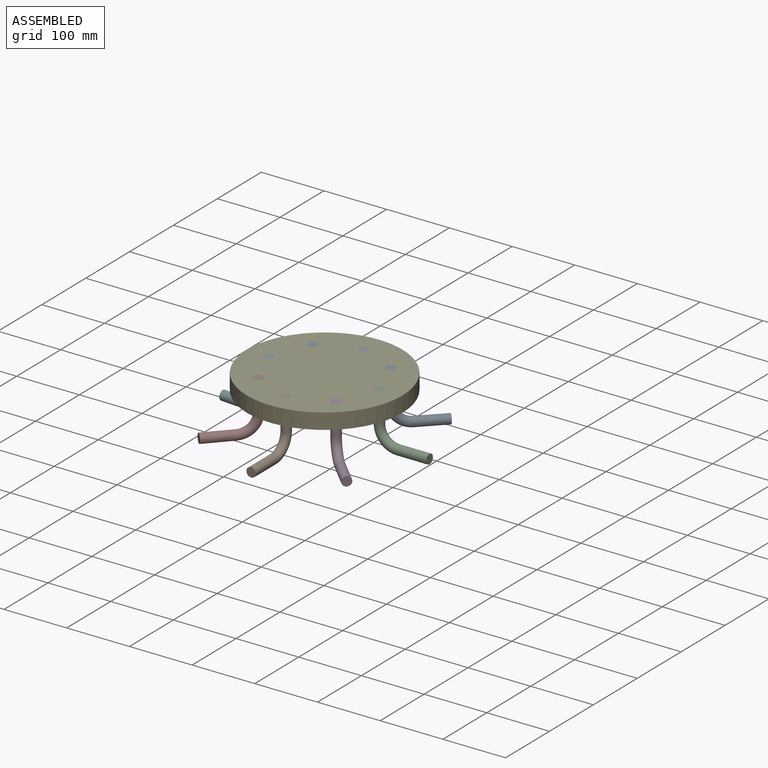
[diagram: assembled view]
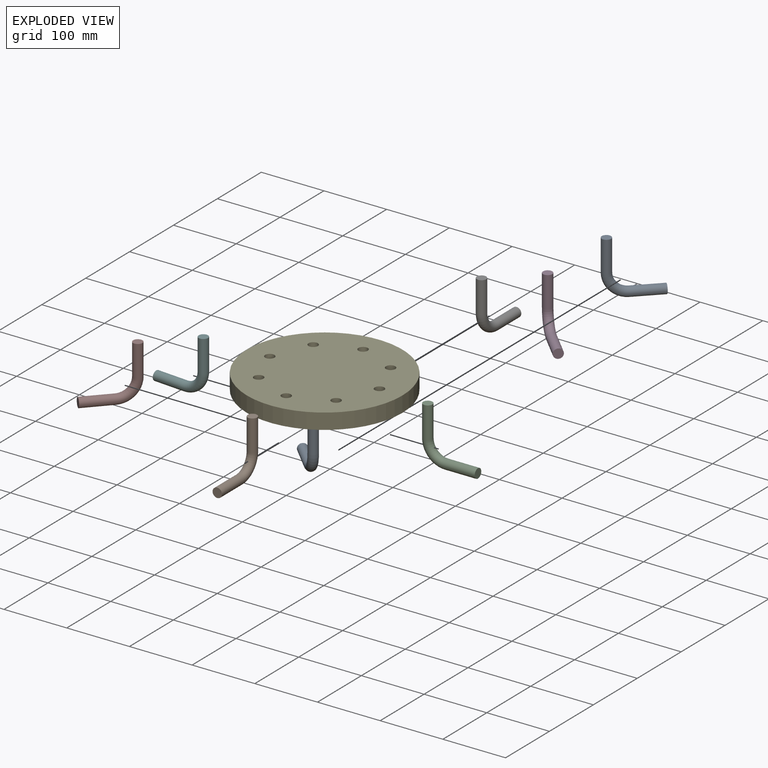
[diagram: exploded view]
GUIDED TOUR — MATED ASSEMBLY (Onshape document bb7279d3a9f84d86f8bf7641, AutoMate assembly bb7279d3a9f84d86f8bf7641_fb9efe05a8c32f27da577873_cc1125d0d3047d0d91f0fd66_default)

This assembly has 9 components, labeled P0..P8 below (a component is one placed occurrence of a part; the same part can appear more than once), held together by 8 mates. A mate is a constraint between two components; its type names the relative motion it leaves free:
  REVOLUTE — leaves rotation about the listed axis free (a hinge).
Axis/direction vectors are unit vectors and 'through' points are millimeter coordinates, both in the assembly's world frame.

MATES
  1. REVOLUTE "Revolute 7": P5 <-> P4, axis (0.000, 0.000, 1.000) through (-17.47, -112.42, 9.55) mm
  2. REVOLUTE "Revolute 2": P6 <-> P4, axis (0.000, 0.000, 1.000) through (70.03, -24.92, 9.55) mm
  3. REVOLUTE "Revolute 6": P1 <-> P4, axis (0.000, 0.000, 1.000) through (70.03, -199.92, 9.55) mm
  4. REVOLUTE "Revolute 1": P8 <-> P4, axis (0.000, 0.000, 1.000) through (8.32, -50.40, 9.55) mm
  5. REVOLUTE "Revolute 8": P7 <-> P4, axis (0.000, 0.000, 1.000) through (8.01, -174.14, 9.55) mm
  6. REVOLUTE "Revolute 5": P3 <-> P4, axis (0.000, 0.000, 1.000) through (131.75, -174.45, 9.55) mm
  7. REVOLUTE "Revolute 3": P0 <-> P4, axis (0.000, 0.000, 1.000) through (132.06, -50.71, 9.55) mm
  8. REVOLUTE "Revolute 4": P2 <-> P4, axis (0.000, 0.000, 1.000) through (157.53, -112.42, 9.55) mm

ASSEMBLY ORDER
  1. P4 — the base component [order heuristic]
  2. P8 — core [order heuristic]
  3. P3 [order verified]
  4. P0 [order verified]
  5. P7 [order verified]
  6. P1 [order verified]
  7. P2 [order verified]
  8. P6 [order verified]
  9. P5 [order verified]
Order-tag legend:
  [order verified] — this step's position reverses a verified removal order: the component was checked to insert without passing through the ones already placed.
  [order heuristic] — the first 2 components form the assembly's core: parts whose collision-free extraction could not be verified, listed in mate-graph order.

Of the 9 components, 9 carry the full construction recipe — the FeatureScript program that regenerates the part's solid from scratch; the rest are supplied as boundary geometry only.
Each toured component is shown spotlighted twice — in the assembled view, then in the exploded view, where a leader line traces a displaced component back to its assembled socket (saturated green if recipe-attached, orange if geometry-only; every other component desaturated gray) — followed by its recipe or geometry summary and the mates that hold it.
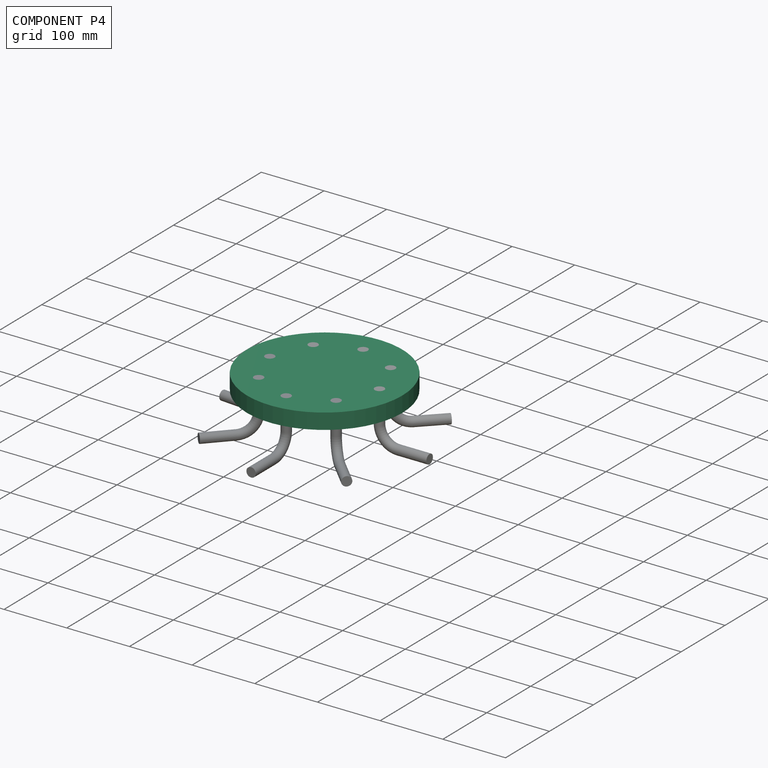
[diagram: component P4 — assembled]
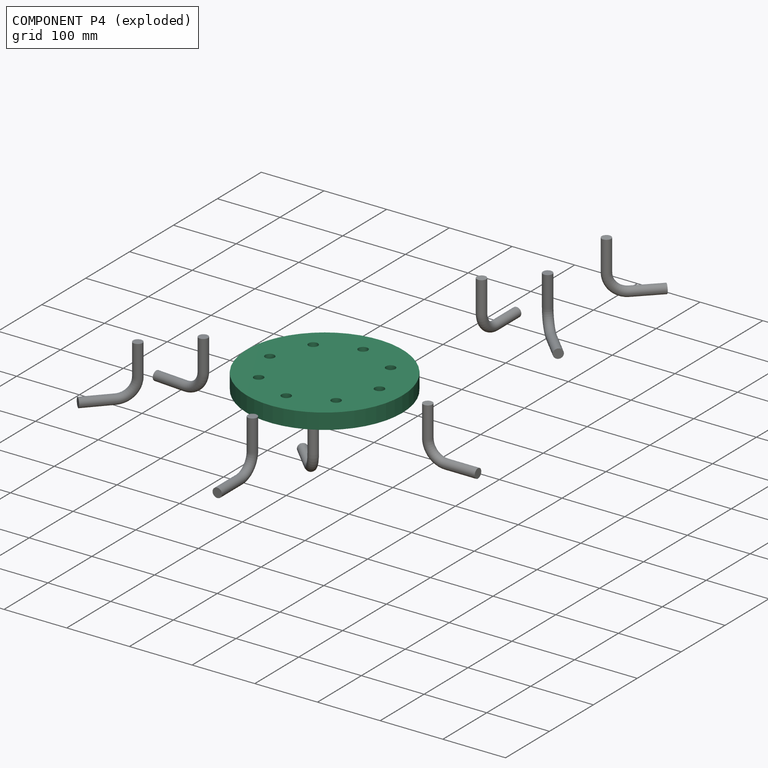
[diagram: component P4 — exploded]
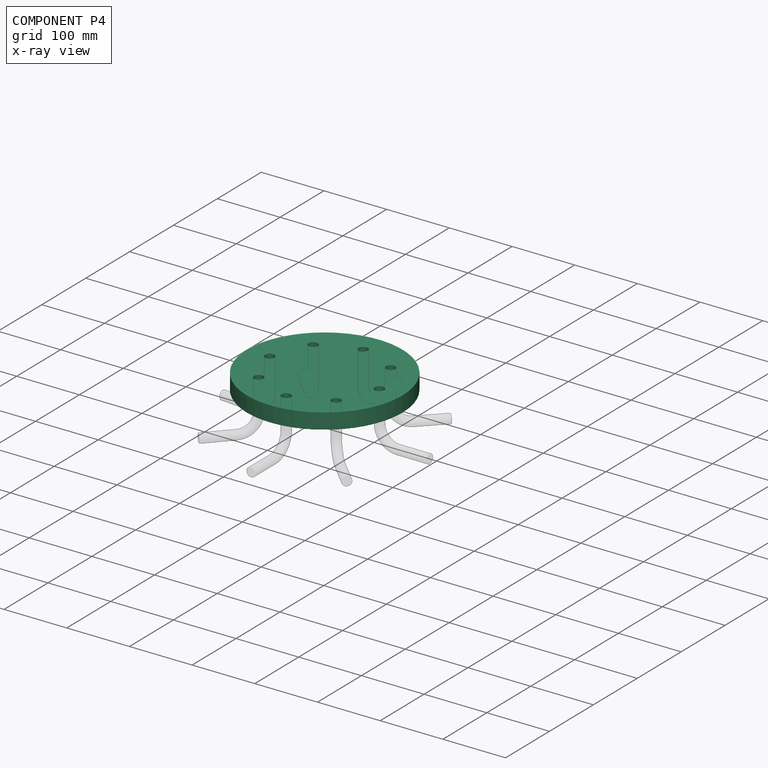
[diagram: component P4 — x-ray view]
COMPONENT P4 — recipe-attached (CADFS 00640116, mesh-verified: the recipe's output STEP matches this component's geometry to below the mesh-comparison resolution (tessellation chordal tolerance ~0.527 mm)).
Held by: REVOLUTE mate "Revolute 7" to P5; REVOLUTE mate "Revolute 2" to P6; REVOLUTE mate "Revolute 6" to P1; REVOLUTE mate "Revolute 1" to P8; REVOLUTE mate "Revolute 8" to P7; REVOLUTE mate "Revolute 5" to P3; REVOLUTE mate "Revolute 3" to P0; REVOLUTE mate "Revolute 4" to P2.
Construction recipe (FeatureScript — the CAD program that rebuilds this solid; sketch coordinates are in the units given by the * unit suffixes, e.g. mm):

FeatureScript 1511;
import(path : "onshape/std/geometry.fs", version : "1511.0");
import(path : "onshape/std/common.fs", version : "1511.0");
const mm = millimeter;
const VERTEX = EntityType.VERTEX;
const EDGE = EntityType.EDGE;
const FACE = EntityType.FACE;
const BODY = EntityType.BODY;
function v(x, y){return vector(x, y);}
function OD(order){return orderDisambiguation(order);}
function OSD(set){return originalSetDisambiguation(set);}
function TD(topology){return topologyDisambiguation(topology);}
function TDD(query){return trueDependencyDisambiguation(query);}
function sQuery(a, b, c) {return sketchEntityQuery(a, b, c);}

annotation { "Feature Type Name" : "Feature", "Feature Type Description" : "" }
export const myFeature = defineFeature(function(context is Context, id is Id, definition is map)
    precondition{}
    {
        {
            var Q0;
            Q0=qCreatedBy(makeId("Top.planeOp"),FACE);
            var sketch = newSketch(context, id + "F0", { "sketchPlane" : qUnion([Q0])});
            skCircle(sketch, "E0", {"center": v(0, 0) * mm, "radius": 124 * mm});
            skLineSegment(sketch, "E1.right", {"start": v(-40, -39.8) * mm, "end": v(-40, -40) * mm});
            skLineSegment(sketch, "E2.top", {"start": v(39.8, -40) * mm, "end": v(40, -40) * mm});
            skCircle(sketch, "E3", {"center": v(0, 87.5) * mm, "radius": 7.5 * mm});
            skCircle(sketch, "E4", {"center": v(0, -87.5) * mm, "radius": 7.5 * mm});
            skCircle(sketch, "E5", {"center": v(-62.03, -61.72) * mm, "radius": 7.5 * mm});
            skCircle(sketch, "E6", {"center": v(61.72, -62.03) * mm, "radius": 7.5 * mm});
            skCircle(sketch, "E7", {"center": v(87.5, 0) * mm, "radius": 7.5 * mm});
            skCircle(sketch, "E8", {"center": v(-87.5, 0) * mm, "radius": 7.5 * mm});
            skCircle(sketch, "E9", {"center": v(-61.72, 62.03) * mm, "radius": 7.5 * mm});
            skCircle(sketch, "E10", {"center": v(62.03, 61.72) * mm, "radius": 7.5 * mm});
            skLineSegment(sketch, "E11.trimOffspring", {"start": v(87.9, 87.46) * mm, "end": v(88.34, 87.9) * mm});
            skPoint(sketch, "E12.orphan", {"position": v(-87.46, -87.03) * mm});
            skPoint(sketch, "E13.orphan", {"position": v(-87.46, 87.9) * mm});
            skPoint(sketch, "E14.top.end.orphan", {"position": v(-40, 40) * mm});
            skPoint(sketch, "E15.right.end.orphan", {"position": v(40, 40) * mm});
            skSolve(sketch);
        }
        {
            var Q0;
            Q0=makeQuery(id+"F0.imprint","IMPRINT",FACE,{"disambiguationData":[TD([[makeQuery(id+"F0.imprint","IMPRINT",EDGE,{"derivedFrom":sQuery(id+"F0.wireOp",EDGE,"E0")}),1.0]])]});
            extrude(context, id + "F1", {"entities" : qUnion([Q0]), "depth" : 25 * mm, "offsetDistance" : 25 * mm});
        }
    });
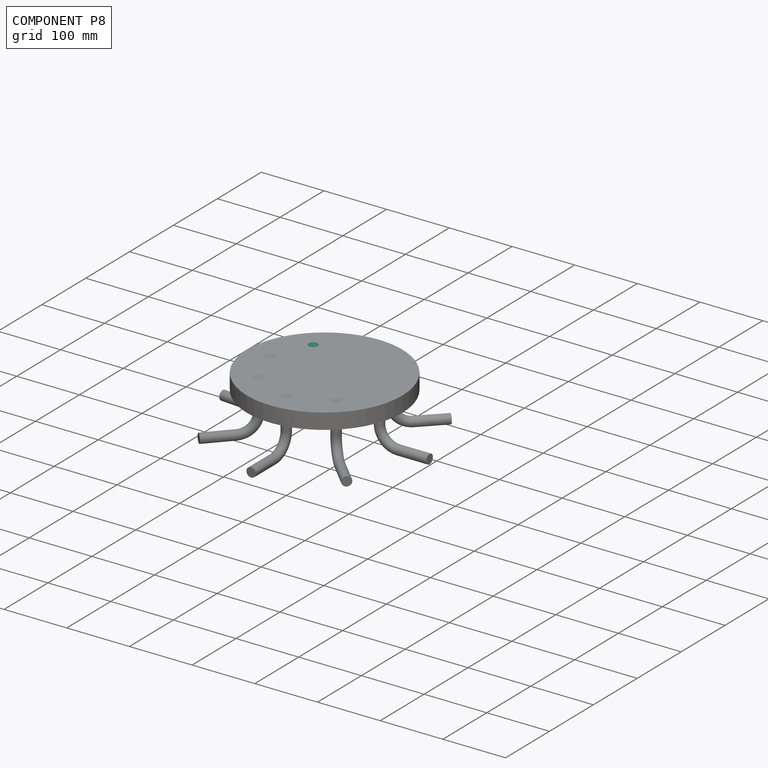
[diagram: component P8 — assembled]
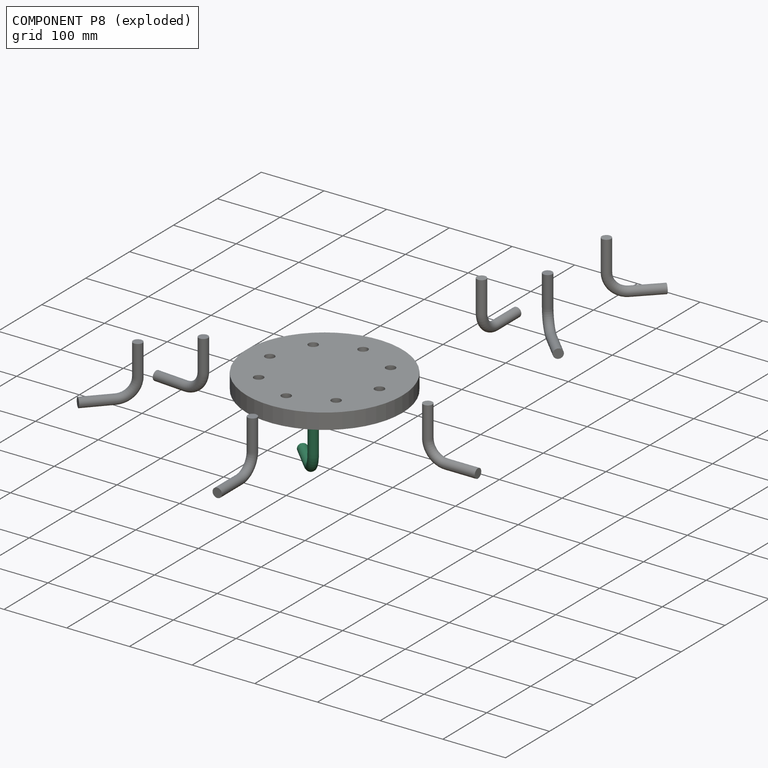
[diagram: component P8 — exploded]
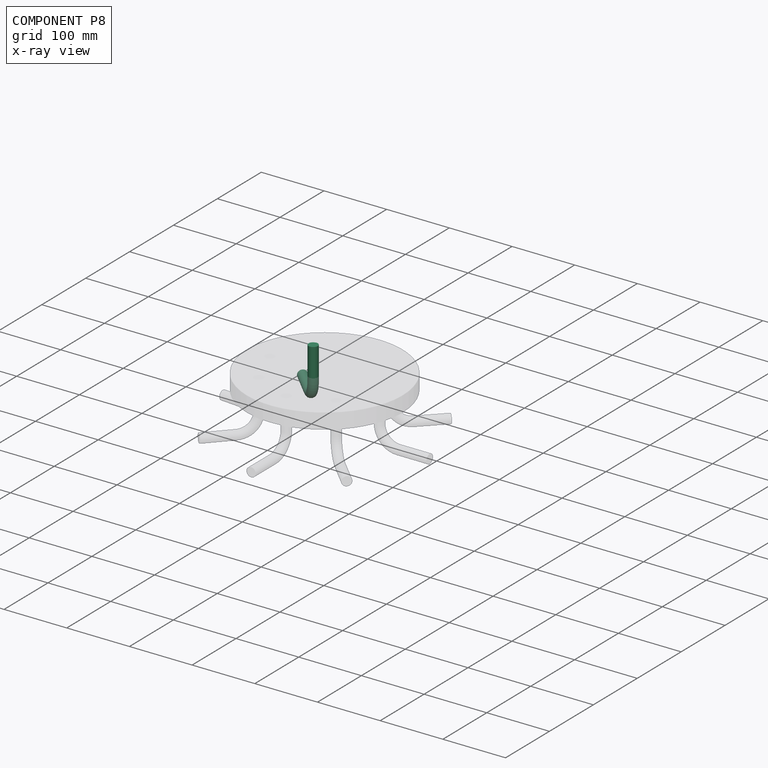
[diagram: component P8 — x-ray view]
COMPONENT P8 — same part as P0 (CADFS 00640117); its construction recipe is shown at P0.
Held by: REVOLUTE mate "Revolute 1" to P4.
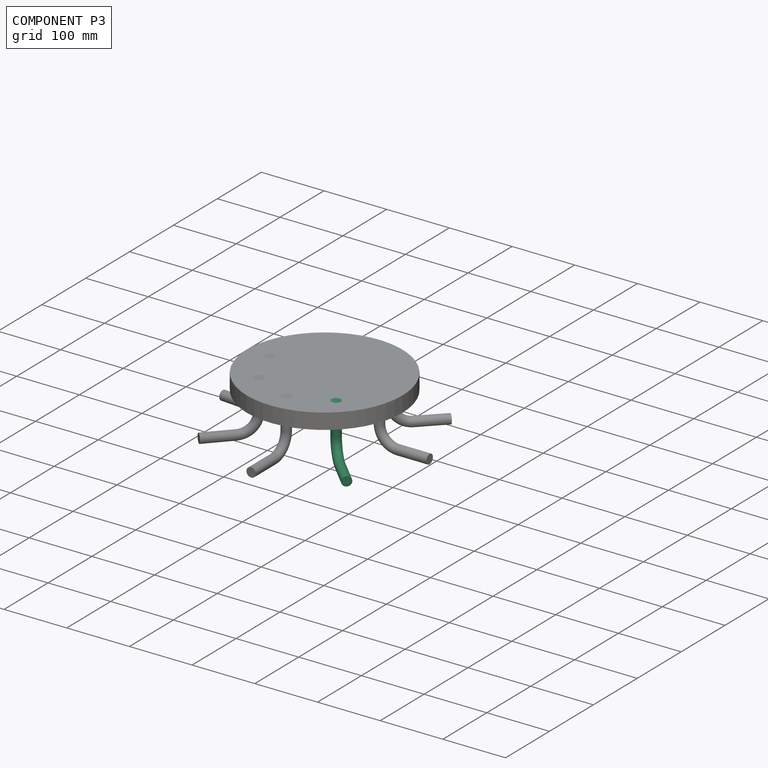
[diagram: component P3 — assembled]
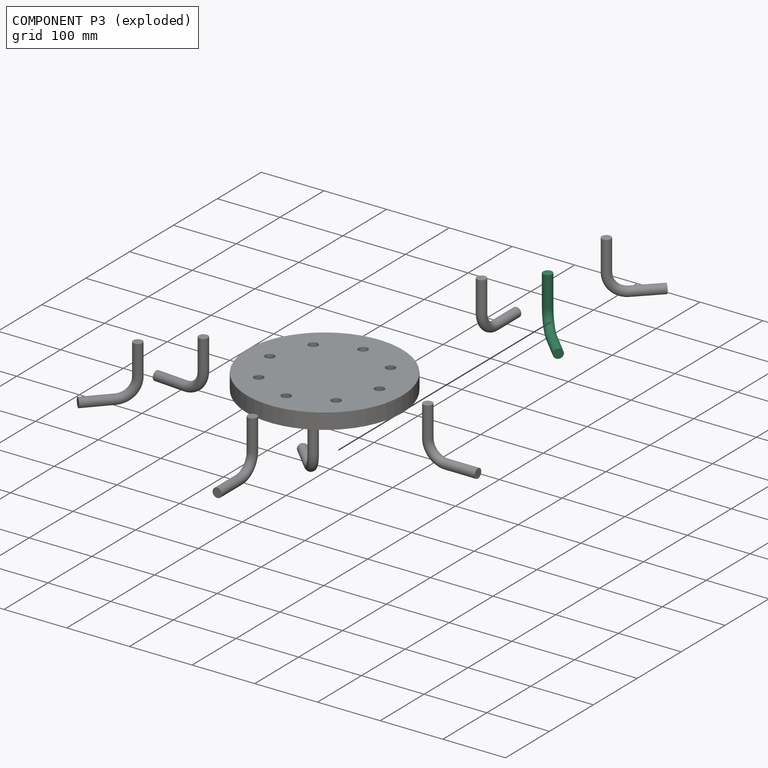
[diagram: component P3 — exploded]
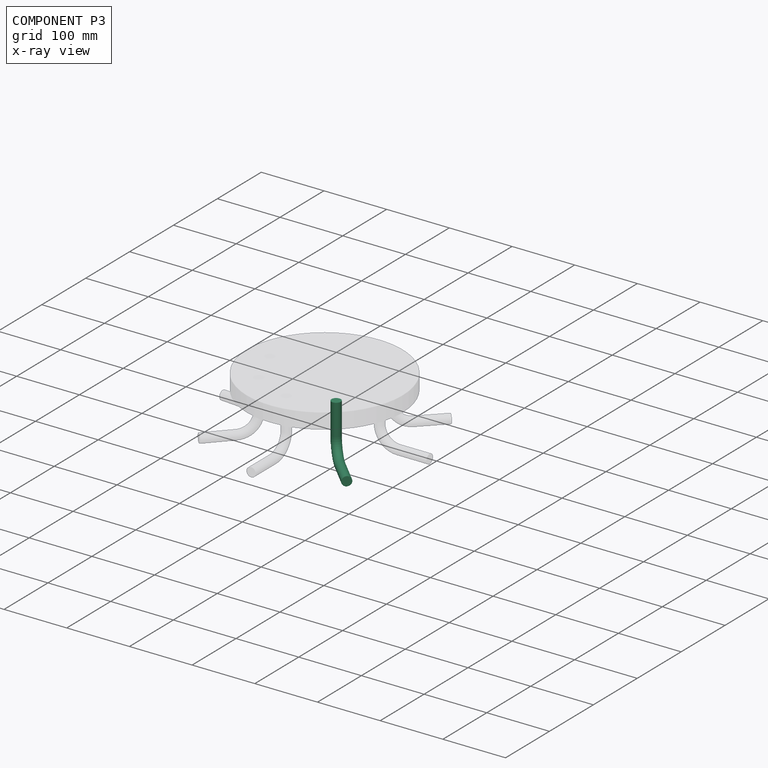
[diagram: component P3 — x-ray view]
COMPONENT P3 — same part as P0 (CADFS 00640117); its construction recipe is shown at P0.
Held by: REVOLUTE mate "Revolute 5" to P4.
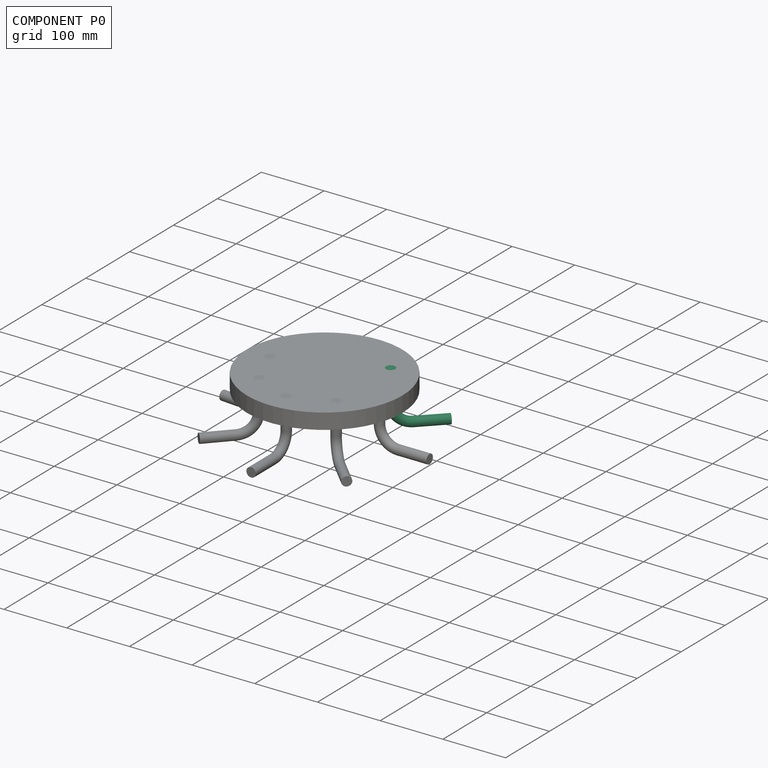
[diagram: component P0 — assembled]
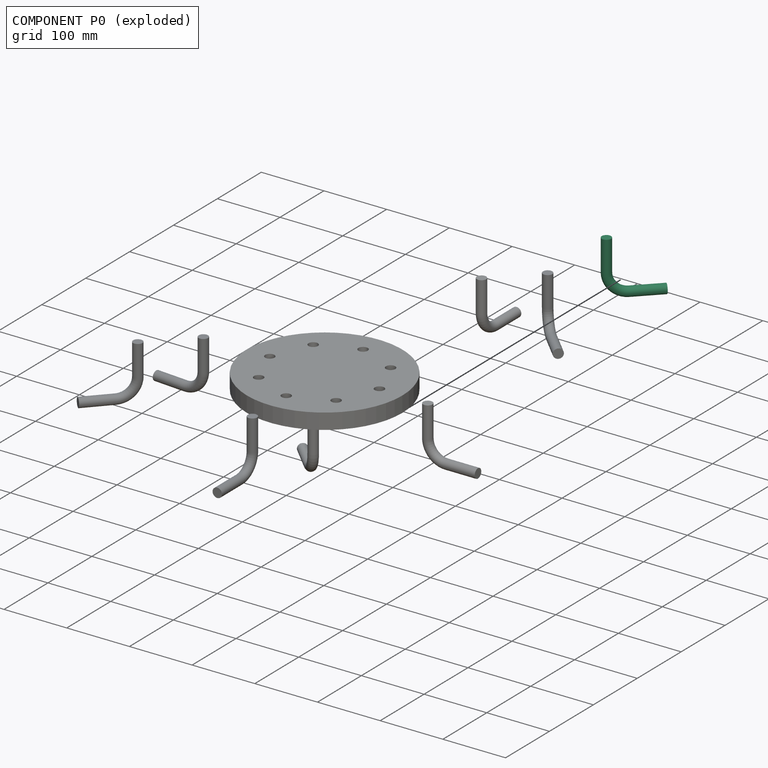
[diagram: component P0 — exploded]
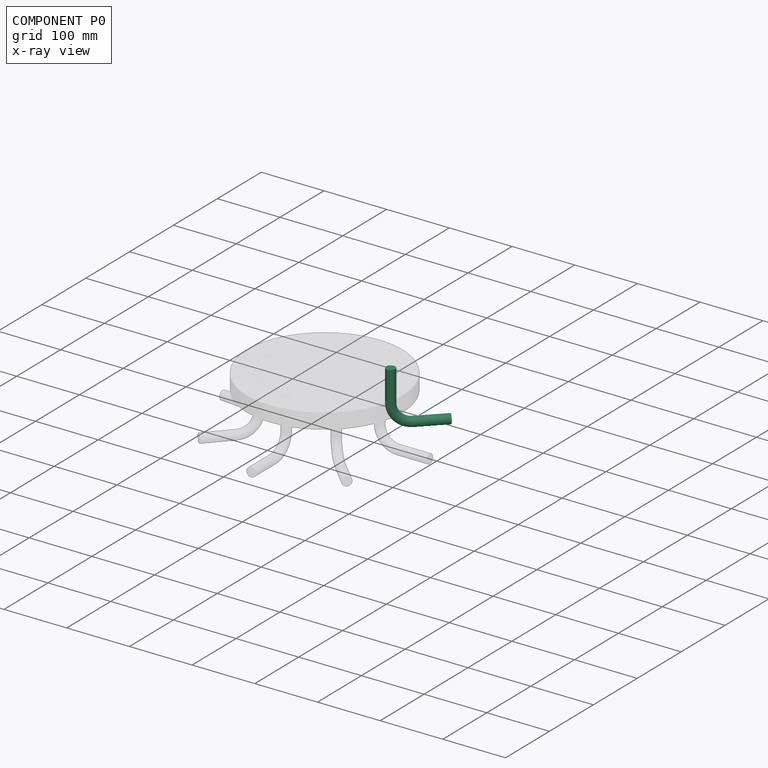
[diagram: component P0 — x-ray view]
COMPONENT P0 — recipe-attached (CADFS 00640117, mesh-verified: the recipe's output STEP matches this component's geometry to below the mesh-comparison resolution (tessellation chordal tolerance ~0.187 mm)).
Held by: REVOLUTE mate "Revolute 3" to P4.
Construction recipe (FeatureScript — the CAD program that rebuilds this solid; sketch coordinates are in the units given by the * unit suffixes, e.g. mm):

FeatureScript 1511;
import(path : "onshape/std/geometry.fs", version : "1511.0");
import(path : "onshape/std/common.fs", version : "1511.0");
const mm = millimeter;
const VERTEX = EntityType.VERTEX;
const EDGE = EntityType.EDGE;
const FACE = EntityType.FACE;
const BODY = EntityType.BODY;
function v(x, y){return vector(x, y);}
function OD(order){return orderDisambiguation(order);}
function OSD(set){return originalSetDisambiguation(set);}
function TD(topology){return topologyDisambiguation(topology);}
function TDD(query){return trueDependencyDisambiguation(query);}
function sQuery(a, b, c) {return sketchEntityQuery(a, b, c);}

annotation { "Feature Type Name" : "Feature", "Feature Type Description" : "" }
export const myFeature = defineFeature(function(context is Context, id is Id, definition is map)
    precondition{}
    {
        {
            var Q0;
            Q0=qCreatedBy(makeId("Top.planeOp"),FACE);
            var sketch = newSketch(context, id + "F0", { "sketchPlane" : qUnion([Q0])});
            skLineSegment(sketch, "E0", {"start": v(0, 0) * mm, "end": v(0, -50) * mm});
            skLineSegment(sketch, "E1", {"start": v(30, -80) * mm, "end": v(80, -80) * mm});
            skPoint(sketch, "E2.visualSharp", {"position": v(0, -80) * mm});
            skArc(sketch, "E2.filletArc", {"start": v(0, -50) * mm, "mid": v(8.79, -71.21) * mm, "end": v(30, -80) * mm});
            skSolve(sketch);
        }
        {
            var Q0;
            Q0=qCreatedBy(makeId("Front.planeOp"),FACE);
            var sketch = newSketch(context, id + "F1", { "sketchPlane" : qUnion([Q0])});
            skCircle(sketch, "E3", {"center": v(0, 0) * mm, "radius": 7.5 * mm});
            skSolve(sketch);
        }
        {
            var Q0;
            Q0=makeQuery(id+"F1.imprint","IMPRINT",FACE,{"disambiguationData":[TD([[makeQuery(id+"F1.imprint","IMPRINT",EDGE,{"derivedFrom":sQuery(id+"F1.wireOp",EDGE,"E3")}),1.0]])]});
            var Q1;
            Q1 = qConstructionFilter(qBodyType(qCreatedBy(id + "F0" ,EDGE), BodyType.WIRE), ConstructionObject.NO);
            sweep(context, id + "F2", {"profiles" : qUnion([Q0]), "path" : qUnion([Q1])});
        }
    });
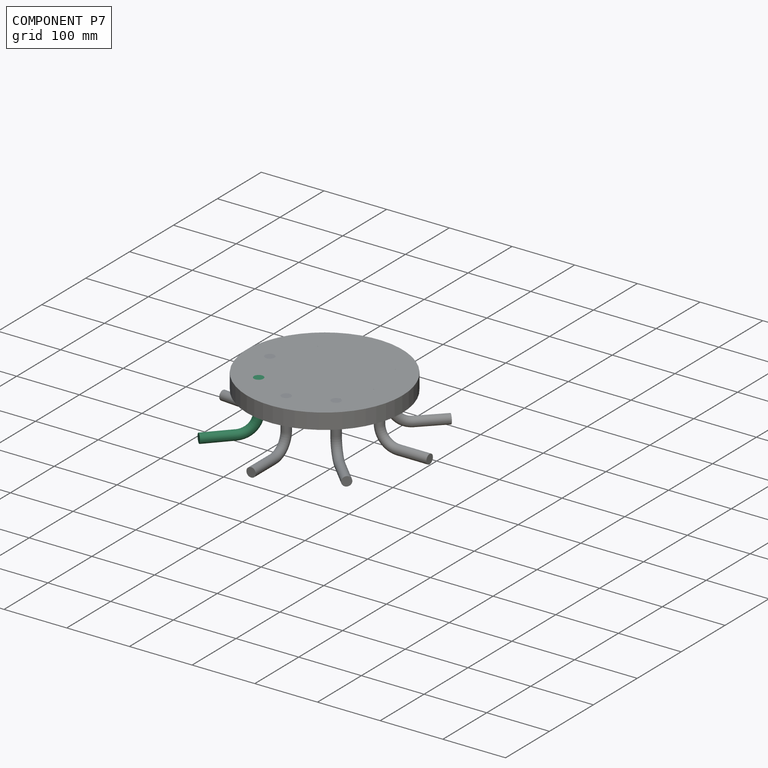
[diagram: component P7 — assembled]
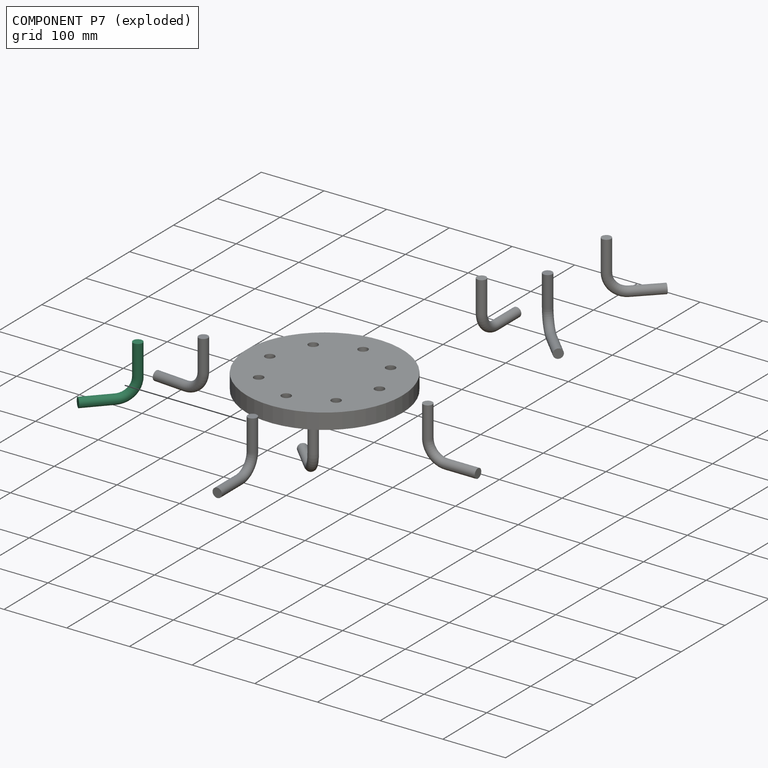
[diagram: component P7 — exploded]
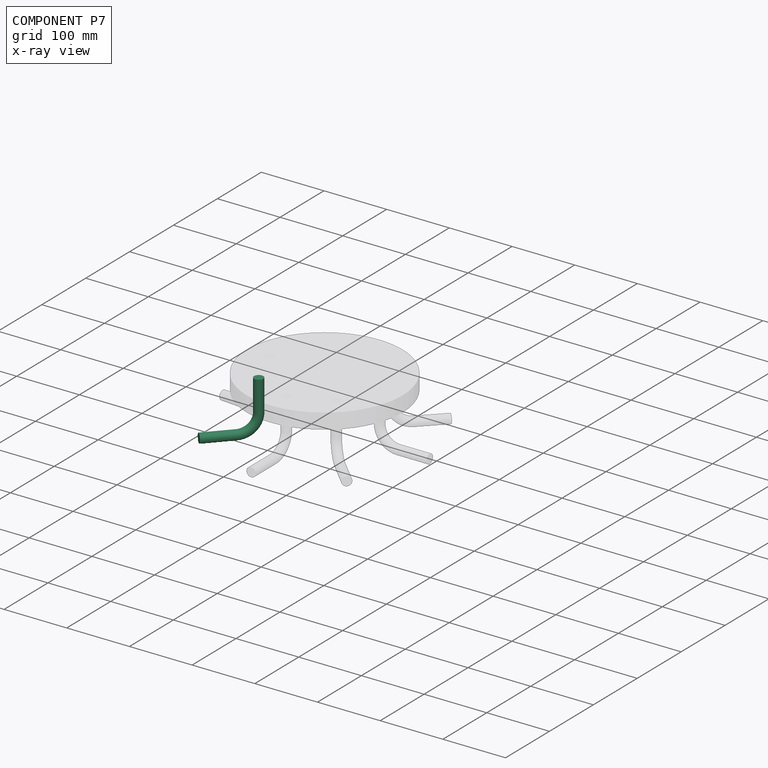
[diagram: component P7 — x-ray view]
COMPONENT P7 — same part as P0 (CADFS 00640117); its construction recipe is shown at P0.
Held by: REVOLUTE mate "Revolute 8" to P4.
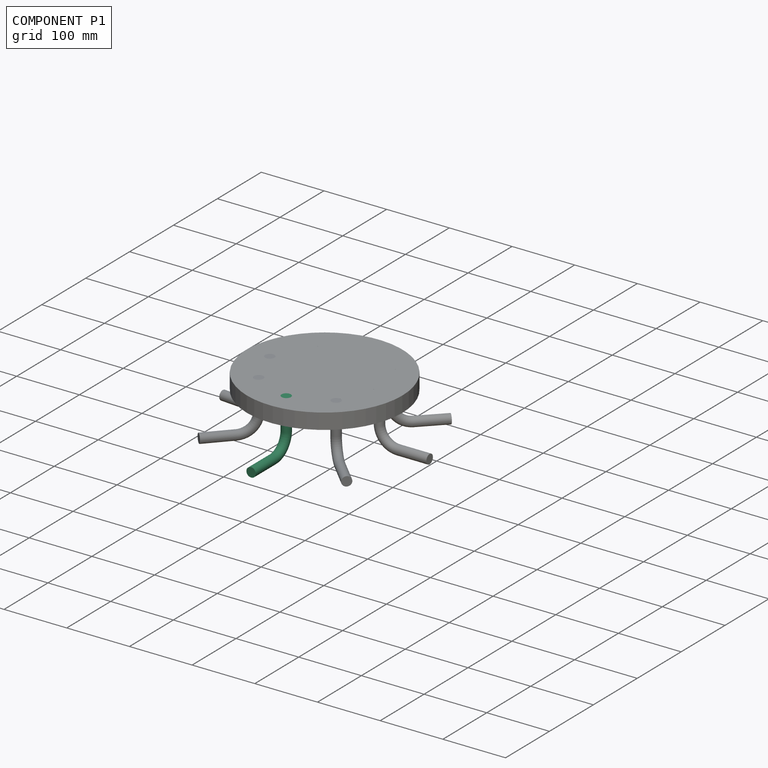
[diagram: component P1 — assembled]
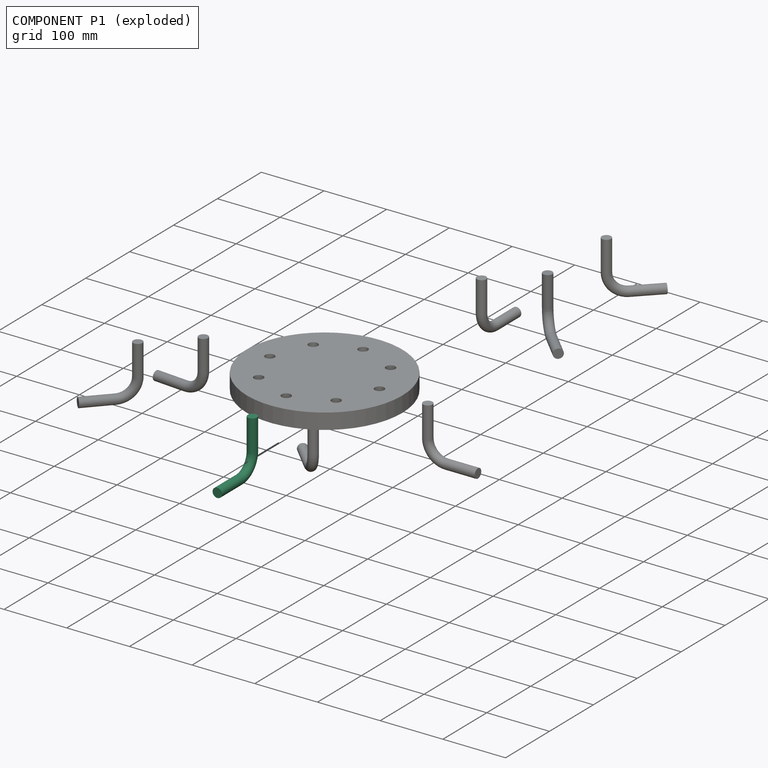
[diagram: component P1 — exploded]
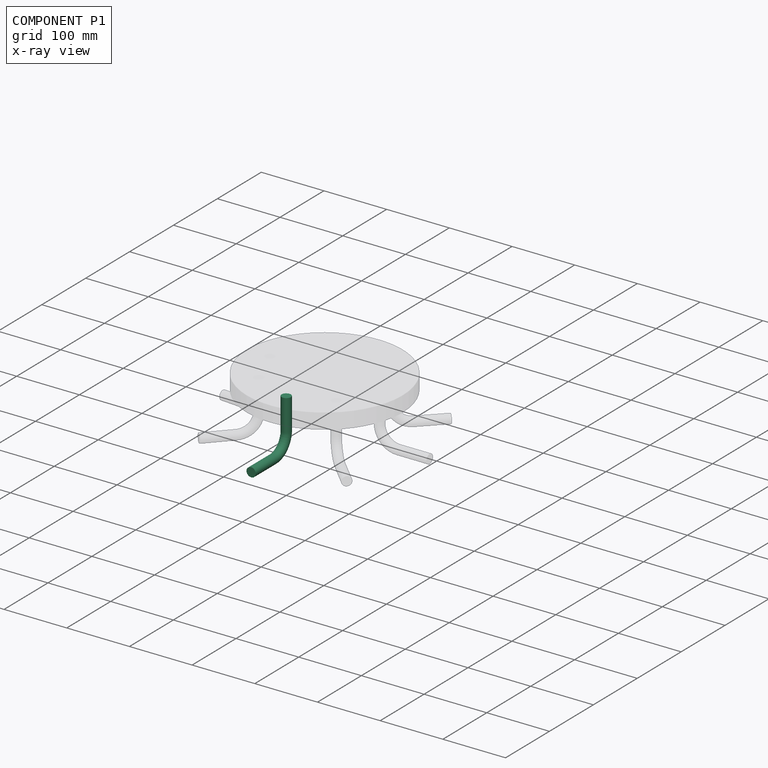
[diagram: component P1 — x-ray view]
COMPONENT P1 — same part as P0 (CADFS 00640117); its construction recipe is shown at P0.
Held by: REVOLUTE mate "Revolute 6" to P4.
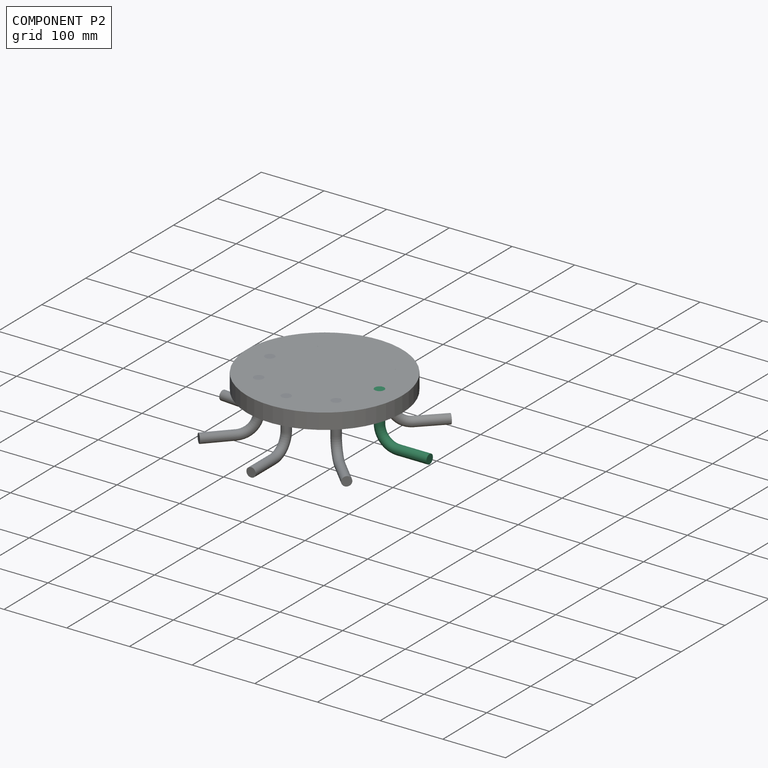
[diagram: component P2 — assembled]
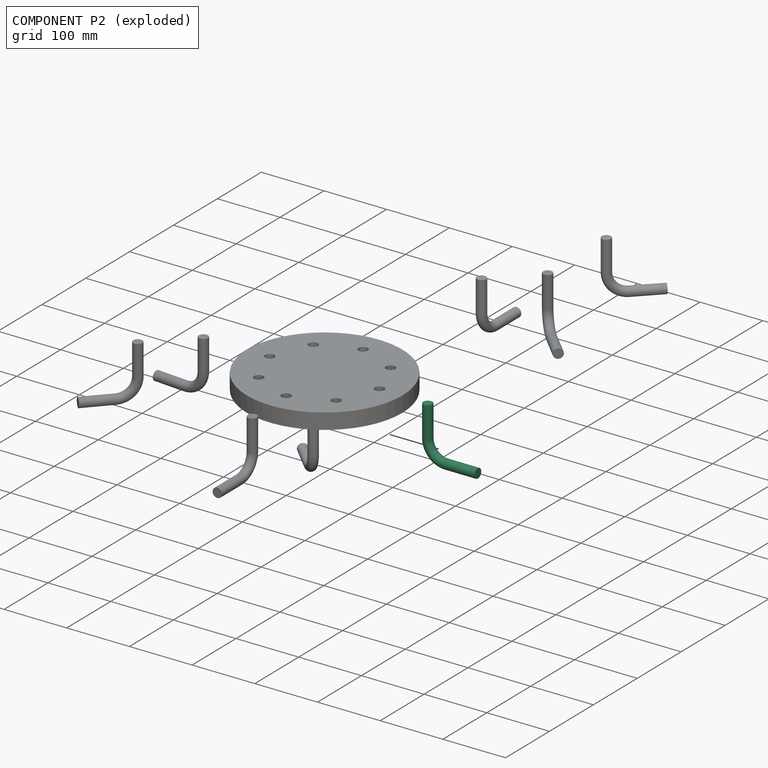
[diagram: component P2 — exploded]
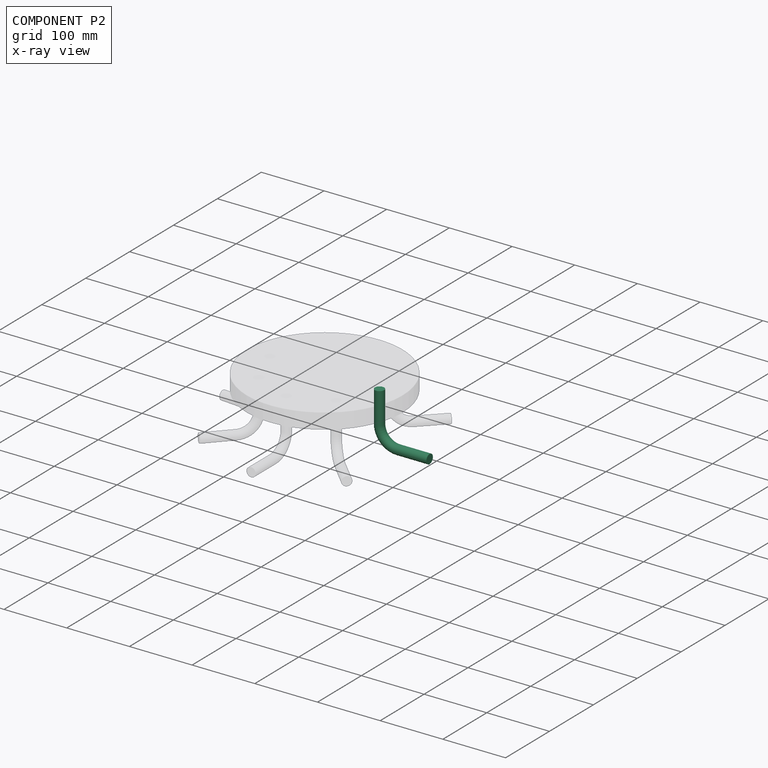
[diagram: component P2 — x-ray view]
COMPONENT P2 — same part as P0 (CADFS 00640117); its construction recipe is shown at P0.
Held by: REVOLUTE mate "Revolute 4" to P4.
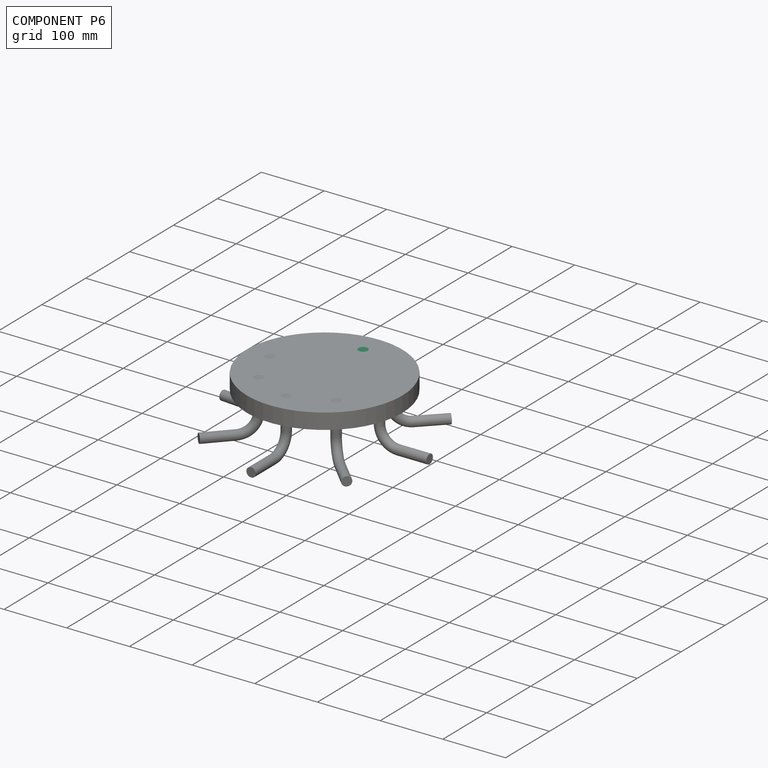
[diagram: component P6 — assembled]
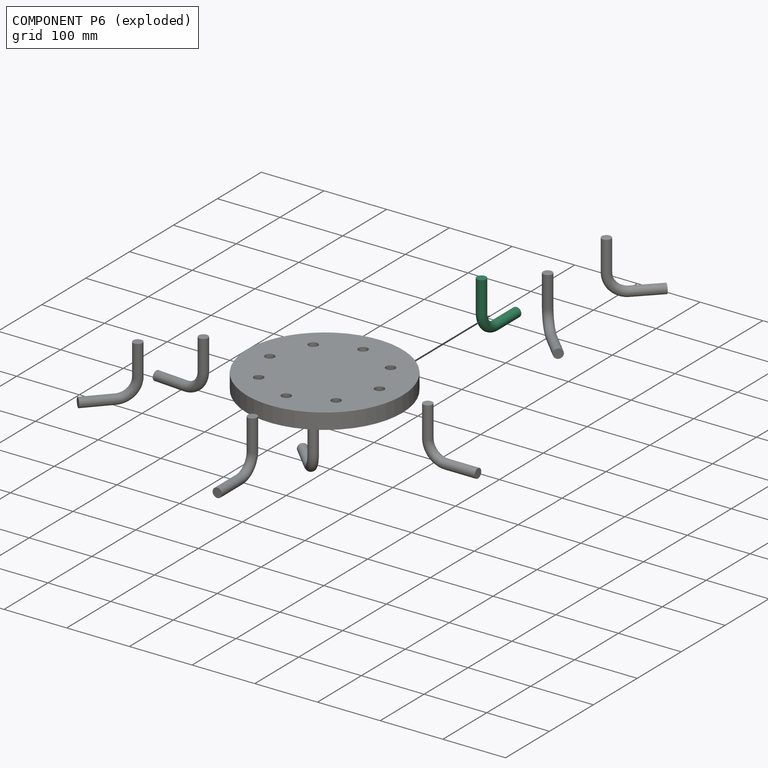
[diagram: component P6 — exploded]
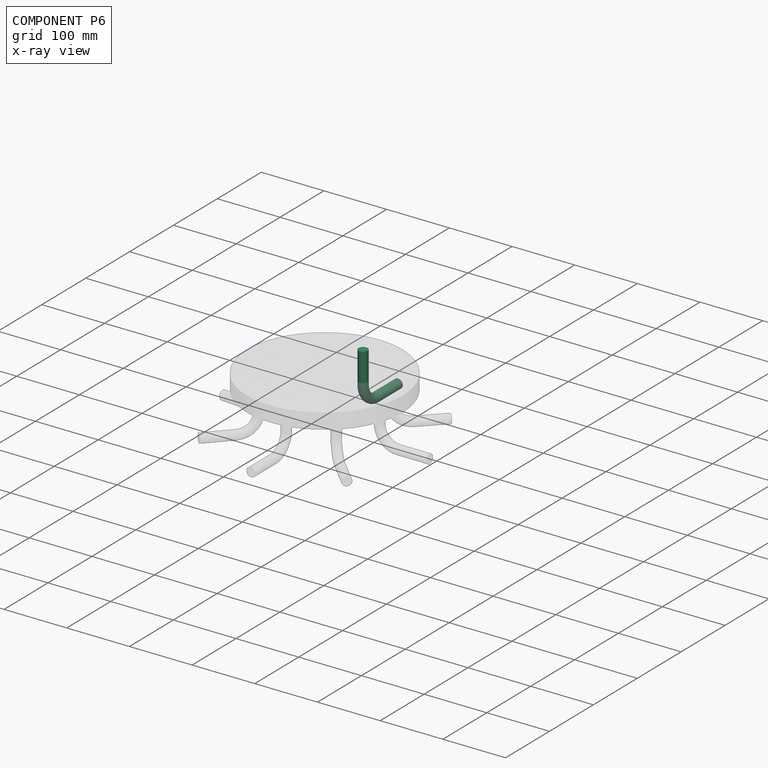
[diagram: component P6 — x-ray view]
COMPONENT P6 — same part as P0 (CADFS 00640117); its construction recipe is shown at P0.
Held by: REVOLUTE mate "Revolute 2" to P4.
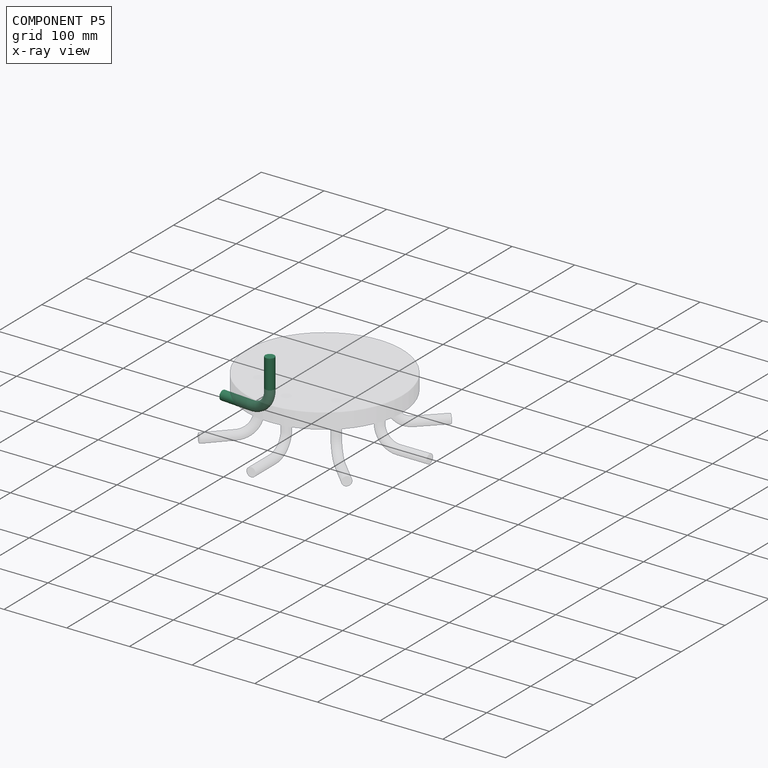
[diagram: component P5 — x-ray view]
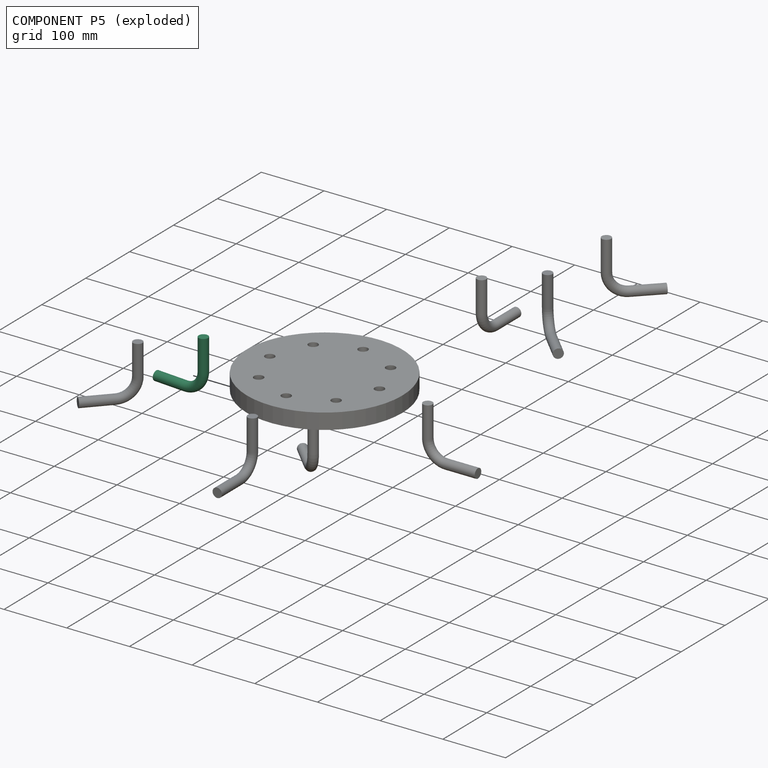
[diagram: component P5 — exploded]
COMPONENT P5 — same part as P0 (CADFS 00640117); its construction recipe is shown at P0.
Held by: REVOLUTE mate "Revolute 7" to P4.
PROVENANCE & LICENSES
Assembly (occurrences, transforms, mates, per-part STEP geometry): AutoMate dataset, Zenodo record 7776208, CC0.
Construction recipes: CADFS (HuggingFace VladPyatov/CADFS, CC-BY-4.0, layered over the ABC dataset), FeatureScript reconstruction programs keyed by ABC model id.
Join: ABC meta listings map ABC model id -> Onshape documentId; within a shared document, parts are matched by geometric signature (bounding-box dims + volume at 0.1% relative tolerance, exact B-rep face/solid counts).
Verification: 9 of this assembly's 9 components carry a recipe attachment, and every attachment is mesh-verified: the CADFS STEP and the AutoMate member STEP were compared as meshes in their shared local frame (symmetric sampled-point-to-mesh distance); worst across the 9 attachments: below the mesh-comparison resolution (tessellation chordal tolerance ~0.527 mm) on a 351 mm part.
Renders: orthographic iso camera (az 35 / el 25); the floor grid conveys scale (grid pitch printed in each image; no ruler). In the exploded view each component is displaced by its stored offset vector: the offsets alone carry the explosion direction (mate normal/axis signs are not orientation cues and do not encode it), and separation distances are assigned per mate-chain, not proportionally to assembly-order depth.
